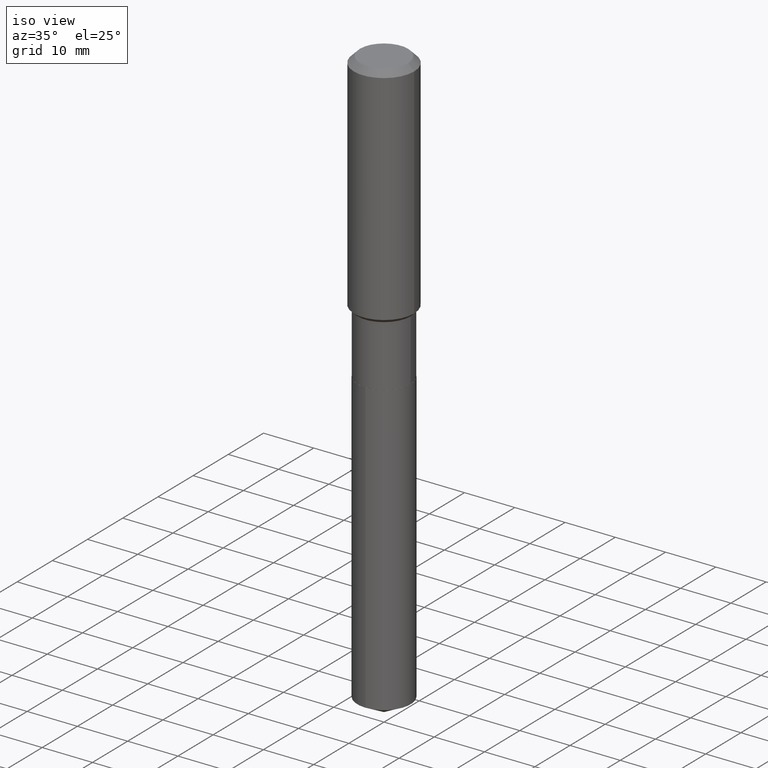
[diagram: clean part render]
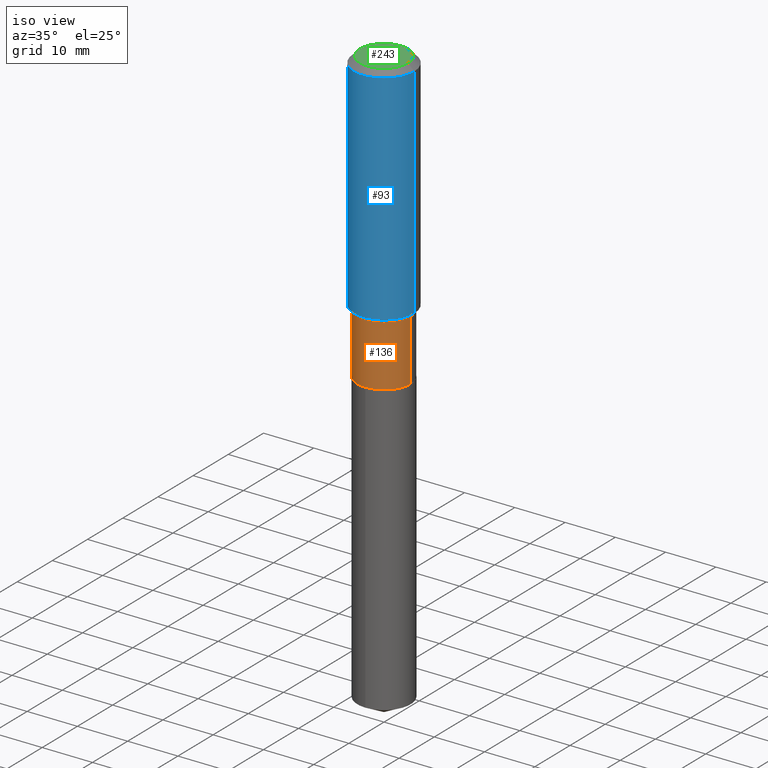
[diagram: same view with three faces highlighted in distinct colors, each labeled with its STEP entity id]
A machine part, iso view with three faces highlighted in distinct colors.
Their STEP definitions:

[orange] entity #136 — the highlighted cylindrical surface (edge-blend (fillet) strip) has radius 5.2997 mm, axis along (-0, 0, 1).
#6 = CARTESIAN_POINT ( 'NONE',  ( -0.2086499999999999744, 1.482547418163448856E-15, -1.026335806581685820E-29 ) ) ;
#11 = CARTESIAN_POINT ( 'NONE',  ( 0.2086500000000000021, -9.372881654124416326E-15, -2.267199999999999438 ) ) ;
#14 = CYLINDRICAL_SURFACE ( 'NONE', #373, 0.2086499999999999744 ) ;
#36 = AXIS2_PLACEMENT_3D ( 'NONE', #361, #170, #353 ) ;
#61 = VECTOR ( 'NONE', #334, 39.37007874015748143 ) ;
#66 = CIRCLE ( 'NONE', #36, 0.2086499999999999466 ) ;
#82 = VERTEX_POINT ( 'NONE', #411 ) ;
#83 = VECTOR ( 'NONE', #315, 39.37007874015748143 ) ;
#85 = DIRECTION ( 'NONE',  ( 1.000000000000000000, -6.982962677686266711E-15, 4.876176775795935793E-29 ) ) ;
#128 = DIRECTION ( 'NONE',  ( -2.445468806185136597E-29, 3.491481338843145583E-15, 1.000000000000000000 ) ) ;
#136 = ADVANCED_FACE ( 'NONE', ( #464 ), #14, .T. ) ;
#146 = DIRECTION ( 'NONE',  ( 1.000000000000000000, -6.982962677686265922E-15, 0.000000000000000000 ) ) ;
#156 = ORIENTED_EDGE ( 'NONE', *, *, #438, .T. ) ;
#165 = CARTESIAN_POINT ( 'NONE',  ( 0.000000000000000000, 0.000000000000000000, 0.000000000000000000 ) ) ;
#170 = DIRECTION ( 'NONE',  ( -2.445468806185136597E-29, 3.491481338843145583E-15, 1.000000000000000000 ) ) ;
#172 = EDGE_CURVE ( 'NONE', #275, #82, #66, .T. ) ;
#179 = CARTESIAN_POINT ( 'NONE',  ( -0.2086499999999999466, -5.596430996341026386E-15, -1.787799999999999390 ) ) ;
#191 = ORIENTED_EDGE ( 'NONE', *, *, #172, .F. ) ;
#198 = VERTEX_POINT ( 'NONE', #11 ) ;
#201 = EDGE_CURVE ( 'NONE', #344, #275, #259, .T. ) ;
#232 = CARTESIAN_POINT ( 'NONE',  ( 5.544366877382941194E-29, -7.915886491425178171E-15, -2.267199999999999438 ) ) ;
#259 = LINE ( 'NONE', #6, #83 ) ;
#270 = ORIENTED_EDGE ( 'NONE', *, *, #387, .T. ) ;
#275 = VERTEX_POINT ( 'NONE', #179 ) ;
#292 = CIRCLE ( 'NONE', #336, 0.2086500000000000021 ) ;
#295 = LINE ( 'NONE', #368, #61 ) ;
#297 = CARTESIAN_POINT ( 'NONE',  ( -0.2086500000000000021, -5.596430996341025597E-15, -2.267199999999999438 ) ) ;
#315 = DIRECTION ( 'NONE',  ( -2.445468806185136877E-29, 3.491481338843145188E-15, 1.000000000000000000 ) ) ;
#328 = EDGE_LOOP ( 'NONE', ( #376, #156, #270, #191 ) ) ;
#334 = DIRECTION ( 'NONE',  ( -2.445468806185136877E-29, 3.491481338843145188E-15, 1.000000000000000000 ) ) ;
#336 = AXIS2_PLACEMENT_3D ( 'NONE', #232, #346, #146 ) ;
#344 = VERTEX_POINT ( 'NONE', #297 ) ;
#346 = DIRECTION ( 'NONE',  ( -2.445468806185136597E-29, 3.491481338843145583E-15, 1.000000000000000000 ) ) ;
#353 = DIRECTION ( 'NONE',  ( 1.000000000000000000, -6.982962677686267499E-15, 0.000000000000000000 ) ) ;
#361 = CARTESIAN_POINT ( 'NONE',  ( 4.372009131697785890E-29, -6.242070337583773496E-15, -1.787799999999999390 ) ) ;
#368 = CARTESIAN_POINT ( 'NONE',  ( 0.2086499999999999744, -1.456995162699239338E-15, 1.017414284269821845E-29 ) ) ;
#373 = AXIS2_PLACEMENT_3D ( 'NONE', #165, #128, #85 ) ;
#376 = ORIENTED_EDGE ( 'NONE', *, *, #201, .F. ) ;
#387 = EDGE_CURVE ( 'NONE', #198, #82, #295, .T. ) ;
#411 = CARTESIAN_POINT ( 'NONE',  ( 0.2086499999999999466, -7.699065500283012440E-15, -1.787799999999999390 ) ) ;
#438 = EDGE_CURVE ( 'NONE', #344, #198, #292, .T. ) ;
#464 = FACE_OUTER_BOUND ( 'NONE', #328, .T. ) ;

[blue] entity #93 — the highlighted cylindrical surface (partial cylindrical patch) has radius 5.9995 mm, axis along (-0, 0, 1).
#26 = AXIS2_PLACEMENT_3D ( 'NONE', #52, #206, #424 ) ;
#32 = VERTEX_POINT ( 'NONE', #277 ) ;
#42 = EDGE_CURVE ( 'NONE', #32, #161, #117, .T. ) ;
#50 = ORIENTED_EDGE ( 'NONE', *, *, #319, .T. ) ;
#52 = CARTESIAN_POINT ( 'NONE',  ( 4.304636466087385309E-29, -6.145880026698644311E-15, -1.760249999999999426 ) ) ;
#74 = EDGE_LOOP ( 'NONE', ( #233, #385, #50, #433 ) ) ;
#87 = CYLINDRICAL_SURFACE ( 'NONE', #452, 0.2362000000000001043 ) ;
#89 = CARTESIAN_POINT ( 'NONE',  ( 0.2361999999999999933, -1.814313362916447440E-15, -0.04724000000000028177 ) ) ;
#90 = VERTEX_POINT ( 'NONE', #324 ) ;
#93 = ADVANCED_FACE ( 'NONE', ( #122 ), #87, .T. ) ;
#112 = DIRECTION ( 'NONE',  ( -2.445468806185136597E-29, 3.491481338843145583E-15, 1.000000000000000000 ) ) ;
#117 = CIRCLE ( 'NONE', #291, 0.2361999999999999933 ) ;
#122 = FACE_OUTER_BOUND ( 'NONE', #74, .T. ) ;
#126 = VECTOR ( 'NONE', #467, 39.37007874015748143 ) ;
#138 = EDGE_CURVE ( 'NONE', #249, #32, #245, .T. ) ;
#143 = EDGE_CURVE ( 'NONE', #249, #90, #257, .T. ) ;
#161 = VERTEX_POINT ( 'NONE', #89 ) ;
#175 = VECTOR ( 'NONE', #465, 39.37007874015748143 ) ;
#206 = DIRECTION ( 'NONE',  ( -2.445468806185136597E-29, 3.491481338843145583E-15, 1.000000000000000000 ) ) ;
#233 = ORIENTED_EDGE ( 'NONE', *, *, #138, .F. ) ;
#245 = LINE ( 'NONE', #285, #175 ) ;
#249 = VERTEX_POINT ( 'NONE', #437 ) ;
#254 = DIRECTION ( 'NONE',  ( -2.445468806185136597E-29, 3.491481338843145583E-15, 1.000000000000000000 ) ) ;
#257 = CIRCLE ( 'NONE', #26, 0.2362000000000002153 ) ;
#277 = CARTESIAN_POINT ( 'NONE',  ( -0.2361999999999999933, -1.477106860707440035E-15, -0.04724000000000028177 ) ) ;
#285 = CARTESIAN_POINT ( 'NONE',  ( -0.2362000000000001043, 1.678301941865357380E-15, -1.161852468318209317E-29 ) ) ;
#291 = AXIS2_PLACEMENT_3D ( 'NONE', #450, #112, #490 ) ;
#319 = EDGE_CURVE ( 'NONE', #90, #161, #367, .T. ) ;
#324 = CARTESIAN_POINT ( 'NONE',  ( 0.2362000000000002153, -7.795255811168141625E-15, -1.760249999999999426 ) ) ;
#367 = LINE ( 'NONE', #432, #126 ) ;
#385 = ORIENTED_EDGE ( 'NONE', *, *, #143, .T. ) ;
#393 = DIRECTION ( 'NONE',  ( 1.000000000000000000, -6.982962677686266711E-15, 4.876176775795935793E-29 ) ) ;
#395 = CARTESIAN_POINT ( 'NONE',  ( 0.000000000000000000, 0.000000000000000000, 0.000000000000000000 ) ) ;
#424 = DIRECTION ( 'NONE',  ( 1.000000000000000000, -6.982962677686266711E-15, 0.000000000000000000 ) ) ;
#432 = CARTESIAN_POINT ( 'NONE',  ( 0.2362000000000001043, -1.649375784469496920E-15, 1.151752954443000508E-29 ) ) ;
#433 = ORIENTED_EDGE ( 'NONE', *, *, #42, .F. ) ;
#437 = CARTESIAN_POINT ( 'NONE',  ( -0.2362000000000002153, -4.467578084833286339E-15, -1.760249999999999426 ) ) ;
#450 = CARTESIAN_POINT ( 'NONE',  ( 1.155239464041865506E-30, -1.649375784469511859E-16, -0.04724000000000028177 ) ) ;
#452 = AXIS2_PLACEMENT_3D ( 'NONE', #395, #254, #393 ) ;
#465 = DIRECTION ( 'NONE',  ( -2.445468806185136877E-29, 3.491481338843145188E-15, 1.000000000000000000 ) ) ;
#467 = DIRECTION ( 'NONE',  ( -2.445468806185136877E-29, 3.491481338843145188E-15, 1.000000000000000000 ) ) ;
#490 = DIRECTION ( 'NONE',  ( 1.000000000000000000, -6.982962677686266711E-15, 0.000000000000000000 ) ) ;

[green] entity #243 — the highlighted planar face has unit normal (0, -0, -1).
#9 = DIRECTION ( 'NONE',  ( -2.445468806185136597E-29, 3.491481338843145583E-15, 1.000000000000000000 ) ) ;
#30 = EDGE_CURVE ( 'NONE', #113, #210, #476, .T. ) ;
#38 = CARTESIAN_POINT ( 'NONE',  ( -9.427742298522546243E-47, 1.346031739168365344E-32, 3.855188123715862256E-18 ) ) ;
#46 = CARTESIAN_POINT ( 'NONE',  ( -0.1889600000000000168, 1.401969416799070942E-15, 3.855188123706346622E-18 ) ) ;
#58 = CARTESIAN_POINT ( 'NONE',  ( -4.713871149261273121E-47, 6.730158695841826722E-33, 1.927594061857931128E-18 ) ) ;
#64 = DIRECTION ( 'NONE',  ( 2.438088387897960049E-29, -3.491481338843145188E-15, -1.000000000000000000 ) ) ;
#79 = ORIENTED_EDGE ( 'NONE', *, *, #185, .T. ) ;
#97 = DIRECTION ( 'NONE',  ( -1.000000000000000000, 6.982962677686265922E-15, -4.876176775795935793E-29 ) ) ;
#113 = VERTEX_POINT ( 'NONE', #46 ) ;
#132 = CIRCLE ( 'NONE', #442, 0.1889600000000000168 ) ;
#150 = ORIENTED_EDGE ( 'NONE', *, *, #30, .T. ) ;
#155 = EDGE_LOOP ( 'NONE', ( #150, #79 ) ) ;
#185 = EDGE_CURVE ( 'NONE', #210, #113, #132, .T. ) ;
#195 = DIRECTION ( 'NONE',  ( -2.445468806185136597E-29, 3.491481338843145583E-15, 1.000000000000000000 ) ) ;
#203 = AXIS2_PLACEMENT_3D ( 'NONE', #38, #195, #449 ) ;
#210 = VERTEX_POINT ( 'NONE', #425 ) ;
#243 = ADVANCED_FACE ( 'NONE', ( #407 ), #266, .F. ) ;
#266 = PLANE ( 'NONE',  #416 ) ;
#357 = DIRECTION ( 'NONE',  ( 1.000000000000000000, -6.982962677686266711E-15, 4.876185090822587894E-29 ) ) ;
#407 = FACE_OUTER_BOUND ( 'NONE', #155, .T. ) ;
#416 = AXIS2_PLACEMENT_3D ( 'NONE', #58, #64, #97 ) ;
#425 = CARTESIAN_POINT ( 'NONE',  ( 0.1889600000000000168, -1.540873453589747738E-15, 3.855188123725863225E-18 ) ) ;
#442 = AXIS2_PLACEMENT_3D ( 'NONE', #458, #9, #357 ) ;
#449 = DIRECTION ( 'NONE',  ( 1.000000000000000000, -6.982962677686266711E-15, 4.876185090822587894E-29 ) ) ;
#458 = CARTESIAN_POINT ( 'NONE',  ( -9.427742298522546243E-47, 1.346031739168365344E-32, 3.855188123715862256E-18 ) ) ;
#476 = CIRCLE ( 'NONE', #203, 0.1889600000000000168 ) ;